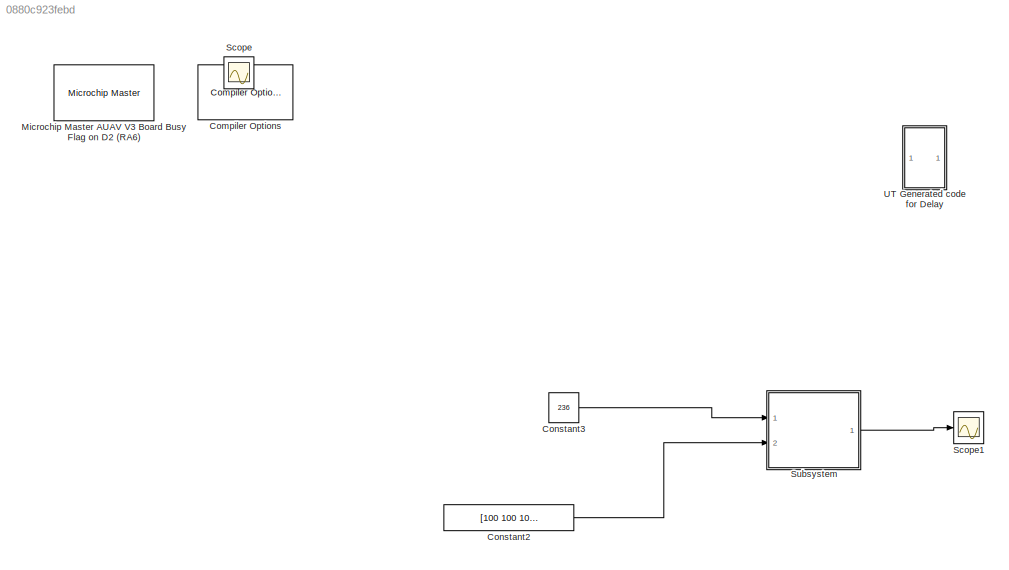
MODEL slx_0880c923febd
KIND model
CONFIG AbsTol = auto
CONFIG FixedStep = 0.001
CONFIG InitFcn = a=3;\n
CONFIG MaxStep = auto
CONFIG MinStep = auto
CONFIG PreLoadFcn = a=3;\nTs=0.01;\n\n
CONFIG RelTol = 1e-3
CONFIG SampleTimeConstraint = Unconstrained
CONFIG Solver = FixedStepDiscrete
CONFIG SolverMode = Auto
CONFIG SolverName = FixedStepDiscrete
CONFIG StartTime = 0.0
CONFIG StopTime = 100
BLOCK [Reference] Compiler Options  REF=MCHP_Blockset/System Configuration/Compiler Options
  AssemblyListing = on
  COMP_LIST = Dynamic Options
  COMP_LIST_TXT = xc16 - v1.26
  DEBUG_INFO = off
  HEAP_SIZE = 0
  LATEST_CMPLR = on
  MCHP_MASTERLINK = SLUGS2_UT/Microchip Master\nAUAV V3 Board\nBusy Flag on D2 (RA6)
  MCHP_MULTITHREAD_COMPILATION = on
  MCODE = is more than 32768
  MCONST = in code memory
  MDATA = Can use all available memory
  MPLAB_LINKLIB = default
  MPLAB_LINKLIB1 = default
  MSCALAR = Can use all available memory
  OMF = elf
  OMIT_FRAME_POINTER = off
  OPTIMIZATION_LEVEL = 1
  PROCEDURAL_ABSTRACTION = off
  Ports = []
  Priority = 1
  ProduceHexOutput = on
  SourceBlock = MCHP_Blockset/System Configuration/Compiler Options
  UNROLL_LOOPS = off
  USE_64BIT_DOUBLE = off
BLOCK [Constant] Constant2
  OutDataTypeStr = single
  SampleTime = -1
  Value = [100 100 100 ]
BLOCK [Constant] Constant3
  OutDataTypeStr = single
  SampleTime = -1
  Value = 236
BLOCK [Reference] Microchip Master AUAV V3 Board Busy Flag on D2 (RA6)  REF=MCHP_Blockset/System Configuration/Microchip Master
  ACTIV_PLL = on
  ACTIV_PLL_spd = on
  AIVTDIS = Disabled AIVT
  ALTADREF = AVREF+/AVREF- are mapped to RA9/RA10
  ALTCMPI = C1INC is on RB13; C2INC is on RB9 and C3INC is on RA0
  ALTCVREF = CVREF+/CVREF- are mapped to RA9/RA10
  ALTI2C = I2C mapped to SDA1/SCL1 pins
  ALTI2C1 = SDA1/SCK1 pins are selected as the I/O pins for I2C1
  ALTI2C2 = SDA2/SCK2 pins are selected as the I/O pins for I2C2
  ALTPMP = EPMP pins are in default location mode
  ALTQIO = QEA1; QEB1; INDX1 are selected as inputs to QEI1
  ALTRB6 = Append the RP6/ASCL1/PMPD6 functions of RB6 to RA1 pin functions
  ALTSS1 = SS1A is selected as the I/O pin for SPI1
  ALTVREF = Voltage reference input; ADC =RA9/RA10 Comparator =RA9;RA10
  APL = Aux Flash Code protect is disabled
  APLK = Aux Flash Write Protection and Code Protection is Disabled
  ATMOD8 = Not used
  AWRP = Auxiliary program memory is not write-protected
  BACKBUG = Not used
  BKBUG = Device resets into Operational mode
  BODENV = 2.7V
  BOOTISA = Boot code and Exception code is MIPS32
  BOREN = Disable
  BOREN0 = Enabled
  BOREN1 = BOR Enabled [When BOREN=1]
  BORV = Brown-out Reset set at 2.0V
  BSEN = No Boot Segment
  BSLIM = Not used
  BSS = No boot program Flash segment
  BSS2 = No Boot Segment
  BTMODE = Device is in Single Boot (legacy) mode
  BTSWP = Not used
  BUSYFLAG = Dynamic Options
  BUSYFLAG_TXT = A6 / Pin[91]
  BWP = Protection Disabled
  BWRP = Boot Segment may be written
  CMPPOL0 = Hysteresis is applied to falling edge
  CMPPOL1 = Hysteresis is applied to falling edge
  COE = Reset Into Operational Mode
  CP = Protection Disabled
  CSEQ = Not used
  CSS = No Protection (other than CWRP)
  CTXT1 = Not Assigned
  CTXT2 = Not Assigned
  CWRP = Configuration Segment may be written
  DBCC = Not used
  DBGPER = Allow CPU access to all permission regions
  DEBUG = Debugger is disabled
  DFMCY = Not used
  DISUVREG = Regulator is disabled
  DMTCNT = 2^31 (2147483648)
  DMTEN = Dead Man Timer is Enabled and cannot be disabled by software
  DMTINTV = Window/Interval value is 127/128 counter value
  DMTIVT = Not used
  DSBOREN = Deep Sleep BOR enabled in Deep Sleep
  DSLPBOR = Deep Sleep BOR enabled in Deep Sleep
  DSSWEN = Deep Sleep is controlled by the register bit DSEN
  DSWDTEN = DSWDT enabled
  DSWDTOSC = DSWDT uses Low Power RC Oscillator (LPRC)
  DSWDTPS = 1:2;147;483;648 (25.7 Days)
  EBS = No Boot EEPROM
  EJTAGBEN = Normal EJTAG functionality
  ESS = No Segment Data EEPROM
  EXTDDRSIZE = External DDR2 Size is 128 MB
  FCANIO = Default CAN I/O
  FCKSM = Both Clock Switching and Fail-safe Clock Monitor are enabled
  FCKSMEN = Sw Disabled; Mon Disabled
  FDMTEN = Deadman Timer is disabled
  FECCCON = ECC and Dynamic ECC are disabled (ECCCON bits are writable)
  FETHIO = Default Ethernet I/O
  FMIIEN = MII Enabled
  FNOSC = Primary oscillator (XT; HS; EC)
  FOS = Internal Fast RC
  FOSFPR = HS3 w/PLL 16x
  FPBDIV = Pb_Clk is Sys_Clk/8
  FPLLICLK = FRC is input to the System PLL
  FPLLIDIV = 8x Divider
  FPLLMUL = 24x Multiplier
  FPLLMULT = PLL Multiply by 128
  FPLLODIV = 32x Divider
  FPLLRNG = 34-68 MHz Input
  FPR = ECIO w/ PLL 16x
  FPWRT = 128ms
  FRANGE = High Range
  FSLEEP = Flash is powered down when the device is in Sleep mode
  FSOSCEN = Enable SOSC
  FSRSSEL = SRS Priority 7
  FUSBIDIO = Controlled by the USB Module
  FVBUSONIO = Controlled by USB Module
  FWDTEN = Disable
  FWDTWINSZ = Window size is 25%
  FWPSA = 1:512
  FWPSA0 = 1:128
  FWPSB = 1:16
  GCP = Disable
  GSS = General Segment Code protect is disabled
  GSS0 = No protection
  GSSK = General Segment Write Protection and Code Protection is Disabled
  GWRP = General Segment may be written
  HPOL = Active High
  HYST0 = 45 mV Hysteresis
  HYST1 = 45 mV Hysteresis
  I2C1SEL = Use Default SCL1/SDA1 Pins For I2C1
  I2C2SEL = I2C2 is multiplexed to SDA2/RA3 and SCL2/RA2
  ICESEL = Communicate on PGEC1/PGED1
  ICS = Communicate on PGEC3 and PGED3
  IESO = Start up with FRC; then switch
  IOL1WAY = Allow only one reconfiguration
  JTAGEN = Disable
  LPCFG = Disabled - regardless of RETEN
  LPOL = Active High
  LPRCSEL = High Power; High Accuracy Mode
  LVRCFG = Low Voltage regulator is not available
  MCHPVAR = MCHP.fcy.periph=70000000;MCHP.fcy.MIPS=70000000;MCHP.PowerSave=0;MCHP.TimeStepFactor=MCHP_Fun.Hex2num('[3FF0000000000004]');MCHP.TimeStep_Timer=1;MCHP.NTIMERS=9;MCHP.id.name='33EP512MU810';MCHP.id.N=reshape([33 512 810],1,3);MCHP.id.L=reshape({ 'EP','MU',''},1,3);MCHP.id.Arch=3;MCHP.periph.PPS.reg_RPINRx=reshape([-1 1 1 1 1 -1 1 1 1 1 1 1 1 1 1 1 1 1 1 1 1 1 -1 -1 1 1 1 1 1 1 1 1 1 1 1 1 1 1 1 1 1...<+6444ch>
  MCHP_CRC = 2006118
  MCHP_PLLRegisters = [5    243  16385     -1]
  MCHP_PORT = {Busy Flag}{Busy}0:1:A6;
  MCHP_TIMER_REQUEST = {Time Step}{TS}0:2:3:1:[]:70000;
  MCHP_TIMER_RESULT = [1 8748.9999999999927 ]
  MCLRE = Enabled
  MIPS = 70 * 1e6
  MIPS_DESIRED = 70e6
  MIPS_DESIRED_spd = 70e6
  ON = Not used
  OSCILLATOR_SELECT = Crystal / Ceramic resonator
  OSCILLATOR_SELECT_spd = Crystal / Ceramic resonator
  OSCIOFCN = OSCO/CLKO/RC15 functions as CLKO (FOSC/2)
  OSCIOFNC = OSC2 is general purpose digital I/O pin
  PGL1WAY = Allow only one reconfiguration
  PICREF = 33EP512MU810
  PLL96MHZ = 96 MHz PLL Startup is enabled automatically on start-up
  PLLDIV = PLL is disabled
  PLLKEN = Clock switch to PLL source will wait until the PLL lock signal is valid.
  PLLSS = PLL is fed by the Primary oscillator
  PLL_96MHZ = Enabled
  PMDL1WAY = Allow only one reconfiguration
  POSCBOOST = Boost the kick start of the oscillator
  POSCFREQ = Primary oscillator/external clock input frequency greater than 8MHz
  POSCGAIN = 2x gain setting
  POSCMD = XT Crystal Oscillator Mode
  POSCMOD = Primary Oscillator Disabled
  POWERSAVE = off
  PWMLOCK = PWM registers may be written without key sequence
  PWMPIN = Control with PORT/TRIS regs
  PWP = Disable
  PWRTEN = PWRT enabled
  Ports = []
  Priority = 1
  QUARTZ = 8e6
  QUARTZ_spd = 8e6
  RBS = No Boot RAM
  RES = Not used
  RES1 = Not used
  RES2 = Not used
  RESERVED1 = Not used
  RETCFG = Retention regulator is not available
  RSS = No Secure RAM
  RSTPRI = Device will obtain reset instruction from Primary flash
  RTCBAT = RTC operation is continued through VBAT
  RTCOSC = RTCC uses Secondary Oscillator (SOSC)
  SEQNUM = Not used
  SMCLR = MCLR pin generates a normal system Reset
  SOSCBOOST = Boost the kick start of the oscillator
  SOSCGAIN = 2x gain setting
  SOSCSEL = Secondary oscillator configured for high-power operation
  SOSCSRC = Analog Mode for use with crystal
  SSS = No Secure Segment
  SWRP = Secure segment may be written
  SourceBlock = MCHP_Blockset/System Configuration/Microchip Master
  TEMP = Not used
  TIMESTEP_REF = Timer  ( 0.001s )
  TRCEN = Trace features in the CPU are enabled
  TSEQ = Not used
  UPLLEN = USB PLL is enabled
  UPLLFSEL = USB PLL input is 24 MHz
  UPLLIDIV = 12x Divider
  USERID = Not used
  VBTBOR = VBAT BOR enabled
  WDT = Disable
  WDTCLK = WDT uses LPRC
  WDTCMX = WDT clock source is determined by the WDTCLK Configuration bits
  WDTEN = Disable
  WDTPOST = 1:32768
  WDTPRE = 1:128
  WDTPS = 1:32768
  WDTSPGM = WDT stops during Flash programming
  WDTWIN = WDT Window is 25% of WDT period
  WINDIS = Watchdog Timer in Non-Window mode
  WPCFG = Disable
  WPDIS = Disable
  WPEND = Write Protect from WPFP to the last page of memory
  WPFP = Page 127 (0x1FC00)
  WUTSEL = Default regulator start-up time used
  WWDTEN = Non-Window mode
  nSEQNUM = Not used
BLOCK [Scope] Scope
  DataFormat = StructureWithTime
  Floating = off
  IOType = viewer
  NumInputPorts = 1
  Ports = []
  SampleTime = 0
BLOCK [Scope] Scope1
  Floating = off
  NumInputPorts = 1
  Ports = [1]
  SaveName = ScopeData1
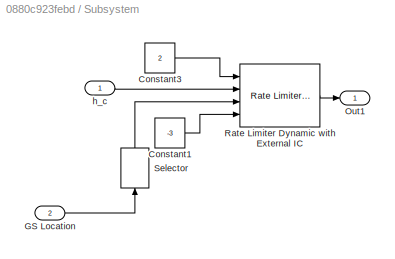
BLOCK [SubSystem] Subsystem
  Ports = [2, 1]
  RequestExecContextInheritance = off
BLOCK [Constant] Subsystem/Constant1
  OutDataTypeStr = single
  SampleTime = -1
  Value = -3
BLOCK [Constant] Subsystem/Constant3
  OutDataTypeStr = single
  SampleTime = -1
  Value = 2
BLOCK [Inport] Subsystem/GS Location
  IconDisplay = Port number
  Port = 2
BLOCK [Outport] Subsystem/Out1
  IconDisplay = Port number
BLOCK [Reference] Subsystem/Rate Limiter Dynamic with External IC  REF=SLUGS_Library/Singnal Routing
& Conditioning/Rate Limiter
Dynamic with
External IC
  Ports = [4, 1]
  SourceBlock = SLUGS_Library/Singnal Routing\n& Conditioning/Rate Limiter\nDynamic with\nExternal IC
  rlIC = -1
BLOCK [Selector] Subsystem/Selector
  Indices = [1 ]
  InputPortWidth = 3
  Ports = [1, 1]
BLOCK [Inport] Subsystem/h_c
  IconDisplay = Port number
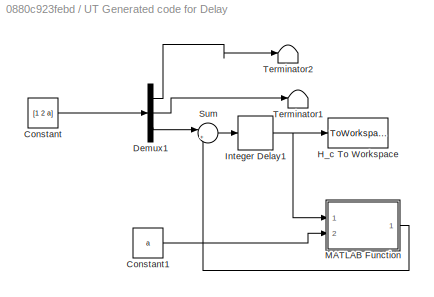
BLOCK [SubSystem] UT Generated code for Delay
  Commented = on
  Ports = []
  RequestExecContextInheritance = off
BLOCK [Constant] UT Generated code for Delay/Constant
  Commented = on
  Value = [1 2 a]
BLOCK [Constant] UT Generated code for Delay/Constant1
  Commented = on
  Value = a
BLOCK [Demux] UT Generated code for Delay/Demux1
  Commented = on
  DisplayOption = bar
  Outputs = 3
  Ports = [1, 3]
BLOCK [ToWorkspace] UT Generated code for Delay/H_c To Workspace
  Commented = on
  FixptAsFi = on
  MaxDataPoints = inf
  Ports = [1]
  SampleTime = -1
  Save2DSignal = 3-D array (concatenate along third dimension)
  SaveFormat = Timeseries
  VariableName = simout
BLOCK [Delay] UT Generated code for Delay/Integer Delay1
  Commented = on
  DelayLength = 1
  InitialCondition = 100
  InputPortMap = u0
  InputProcessing = Inherited
  Ports = [1, 1]
  SampleTime = 1
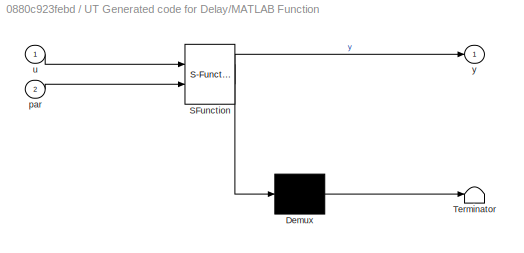
BLOCK [SubSystem] UT Generated code for Delay/MATLAB Function
  Commented = on
  ErrorFcn = Stateflow.Translate.translate
  PermitHierarchicalResolution = ExplicitOnly
  Ports = [2, 1]
  RequestExecContextInheritance = off
  SFBlockType = MATLAB Function
  TreatAsAtomicUnit = on
BLOCK [Demux] UT Generated code for Delay/MATLAB Function/ Demux 
  Outputs = 1
  Ports = [1, 1]
BLOCK [S-Function] UT Generated code for Delay/MATLAB Function/ SFunction 
  EnableBusSupport = on
  FunctionName = sf_sfun
  PortCounts = [2 2]
  Ports = [2, 2]
  Tag = Stateflow S-Function SLUGS2_UT 2
BLOCK [Terminator] UT Generated code for Delay/MATLAB Function/ Terminator 
BLOCK [Inport] UT Generated code for Delay/MATLAB Function/par
  IconDisplay = Port number
  Port = 2
BLOCK [Inport] UT Generated code for Delay/MATLAB Function/u
  IconDisplay = Port number
BLOCK [Outport] UT Generated code for Delay/MATLAB Function/y
  IconDisplay = Port number
BLOCK [Sum] UT Generated code for Delay/Sum
  Commented = on
  IconShape = round
  InputSameDT = off
  Inputs = |++
  OutDataTypeStr = Inherit: Inherit via internal rule
  Ports = [2, 1]
  SaturateOnIntegerOverflow = off
BLOCK [Terminator] UT Generated code for Delay/Terminator1
  Commented = on
BLOCK [Terminator] UT Generated code for Delay/Terminator2
  Commented = on
LINE Constant2:1 -> Subsystem:2
LINE Constant3:1 -> Subsystem:1
LINE Subsystem/Constant1:1 -> Subsystem/Rate Limiter Dynamic with External IC:4
LINE Subsystem/Constant3:1 -> Subsystem/Rate Limiter Dynamic with External IC:1
LINE Subsystem/GS Location:1 -> Subsystem/Selector:1
LINE Subsystem/Rate Limiter Dynamic with External IC:1 -> Subsystem/Out1:1
LINE Subsystem/Selector:1 -> Subsystem/Rate Limiter Dynamic with External IC:3
LINE Subsystem/h_c:1 -> Subsystem/Rate Limiter Dynamic with External IC:2
LINE Subsystem:1 -> Scope1:1
LINE UT Generated code for Delay/Constant1:1 -> UT Generated code for Delay/MATLAB Function:2
LINE UT Generated code for Delay/Constant:1 -> UT Generated code for Delay/Demux1:1
LINE UT Generated code for Delay/Demux1:1 -> UT Generated code for Delay/Terminator2:1
LINE UT Generated code for Delay/Demux1:2 -> UT Generated code for Delay/Terminator1:1
LINE UT Generated code for Delay/Demux1:3 -> UT Generated code for Delay/Sum:1
NET UT Generated code for Delay/Integer Delay1:1 -> UT Generated code for Delay/H_c To Workspace:1, UT Generated code for Delay/MATLAB Function:1
LINE UT Generated code for Delay/MATLAB Function:1 -> UT Generated code for Delay/Sum:2
LINE UT Generated code for Delay/Sum:1 -> UT Generated code for Delay/Integer Delay1:1
note: NET lines group one-source signal fan-out (src -> all destinations, sorted); 1:1 wires keep LINE
CHART UT Generated code for Delay/MATLAB Function states=1 transitions=1
  STATE_LABEL 'eML_blk_kernel()'
  STATE_LABEL 'SCRIPT:\nfunction y = fcn(u,par)\n%#codegen\n\ny = u+par;'
